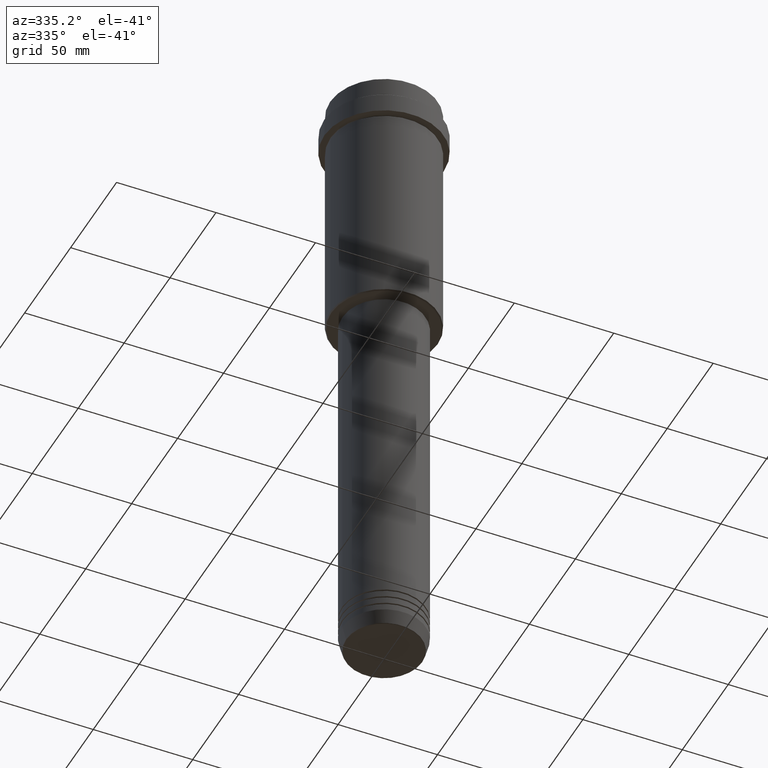
[diagram: clean part render]
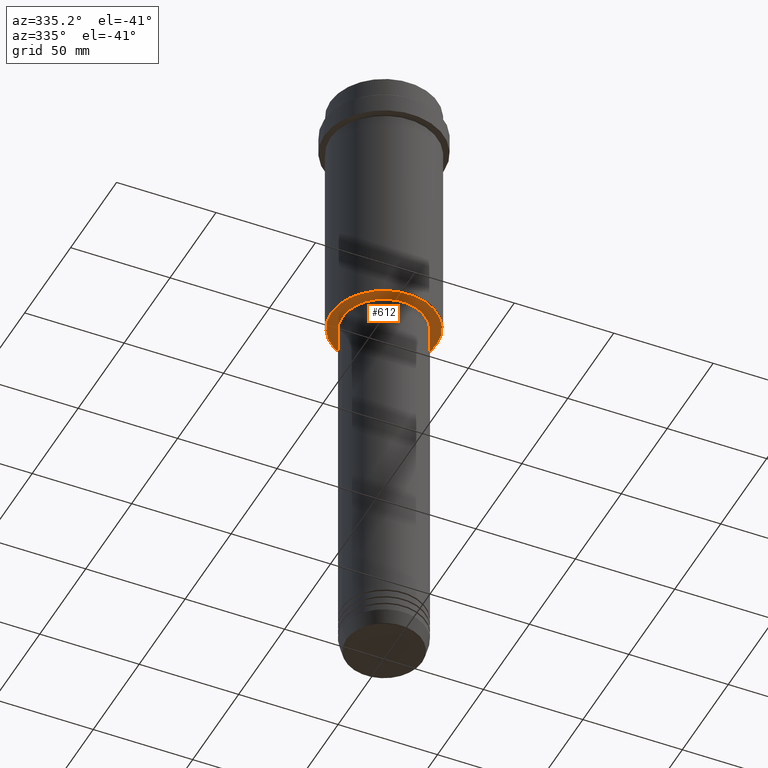
[diagram: same view with one face highlighted and labeled with its STEP entity id]
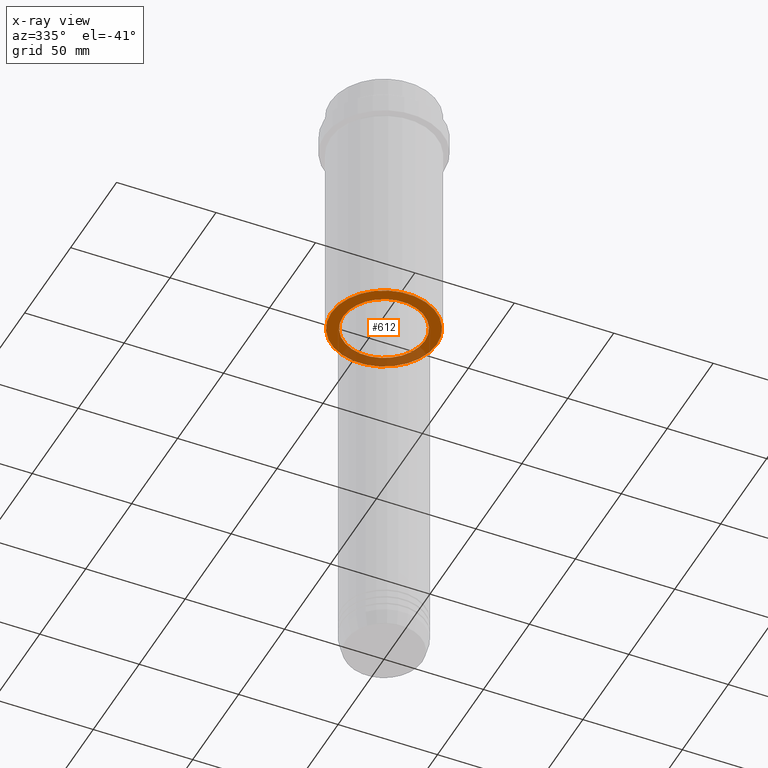
[diagram: x-ray of the same camera — body ghosted, the highlighted face saturated]
A machine part, auxiliary view. The second image highlights one B-rep face of the part: STEP entity #612.
The next image is the same camera in x-ray: the body ghosted, the highlighted face saturated — about 28% of this face is hidden behind the body in this view.
In plain terms, the highlighted planar face has unit normal (0, 0, -1).
Its self-contained STEP definition (entity closure, byte-faithful):
#18 = EDGE_CURVE ( 'NONE', #393, #205, #122, .T. ) ;
#27 = ORIENTED_EDGE ( 'NONE', *, *, #902, .T. ) ;
#41 = EDGE_LOOP ( 'NONE', ( #1369, #626 ) ) ;
#122 = CIRCLE ( 'NONE', #211, 20.50000000000000000 ) ;
#135 = DIRECTION ( 'NONE',  ( 1.000000000000000000, 0.000000000000000000, 0.000000000000000000 ) ) ;
#137 = PLANE ( 'NONE',  #919 ) ;
#205 = VERTEX_POINT ( 'NONE', #1344 ) ;
#211 = AXIS2_PLACEMENT_3D ( 'NONE', #827, #752, #135 ) ;
#240 = VERTEX_POINT ( 'NONE', #367 ) ;
#281 = CIRCLE ( 'NONE', #1081, 26.49999999999993960 ) ;
#283 = DIRECTION ( 'NONE',  ( -1.000000000000000000, 0.000000000000000000, 0.000000000000000000 ) ) ;
#291 = EDGE_CURVE ( 'NONE', #205, #393, #1039, .T. ) ;
#296 = CARTESIAN_POINT ( 'NONE',  ( 0.000000000000000000, 0.000000000000000000, -128.0000000000000000 ) ) ;
#367 = CARTESIAN_POINT ( 'NONE',  ( 26.49999999999993960, 0.000000000000000000, -128.0000000000000000 ) ) ;
#371 = EDGE_CURVE ( 'NONE', #240, #613, #1385, .T. ) ;
#393 = VERTEX_POINT ( 'NONE', #723 ) ;
#503 = DIRECTION ( 'NONE',  ( 0.000000000000000000, 0.000000000000000000, -1.000000000000000000 ) ) ;
#538 = CARTESIAN_POINT ( 'NONE',  ( 0.000000000000000000, 27.00000000000000000, -128.0000000000000000 ) ) ;
#544 = FACE_BOUND ( 'NONE', #41, .T. ) ;
#612 = ADVANCED_FACE ( 'NONE', ( #769, #544 ), #137, .T. ) ;
#613 = VERTEX_POINT ( 'NONE', #786 ) ;
#616 = DIRECTION ( 'NONE',  ( -1.000000000000000000, 0.000000000000000000, 0.000000000000000000 ) ) ;
#626 = ORIENTED_EDGE ( 'NONE', *, *, #291, .T. ) ;
#663 = CARTESIAN_POINT ( 'NONE',  ( 0.000000000000000000, 0.000000000000000000, -127.9999999999999716 ) ) ;
#723 = CARTESIAN_POINT ( 'NONE',  ( 20.50000000000000000, 0.000000000000000000, -127.9999999999999716 ) ) ;
#752 = DIRECTION ( 'NONE',  ( -0.000000000000000000, -0.000000000000000000, 1.000000000000000000 ) ) ;
#767 = AXIS2_PLACEMENT_3D ( 'NONE', #1261, #503, #283 ) ;
#769 = FACE_OUTER_BOUND ( 'NONE', #1247, .T. ) ;
#782 = ORIENTED_EDGE ( 'NONE', *, *, #371, .T. ) ;
#786 = CARTESIAN_POINT ( 'NONE',  ( -26.49999999999993960, 3.275930187719166002E-15, -128.0000000000000000 ) ) ;
#796 = DIRECTION ( 'NONE',  ( -0.000000000000000000, -0.000000000000000000, 1.000000000000000000 ) ) ;
#827 = CARTESIAN_POINT ( 'NONE',  ( 0.000000000000000000, 0.000000000000000000, -127.9999999999999716 ) ) ;
#849 = DIRECTION ( 'NONE',  ( 0.000000000000000000, 0.000000000000000000, -1.000000000000000000 ) ) ;
#902 = EDGE_CURVE ( 'NONE', #613, #240, #281, .T. ) ;
#919 = AXIS2_PLACEMENT_3D ( 'NONE', #538, #1203, #1325 ) ;
#1039 = CIRCLE ( 'NONE', #1332, 20.50000000000000000 ) ;
#1081 = AXIS2_PLACEMENT_3D ( 'NONE', #296, #849, #616 ) ;
#1203 = DIRECTION ( 'NONE',  ( 0.000000000000000000, 0.000000000000000000, -1.000000000000000000 ) ) ;
#1247 = EDGE_LOOP ( 'NONE', ( #782, #27 ) ) ;
#1261 = CARTESIAN_POINT ( 'NONE',  ( 0.000000000000000000, 0.000000000000000000, -128.0000000000000000 ) ) ;
#1325 = DIRECTION ( 'NONE',  ( -1.000000000000000000, 0.000000000000000000, -0.000000000000000000 ) ) ;
#1327 = DIRECTION ( 'NONE',  ( 1.000000000000000000, 0.000000000000000000, 0.000000000000000000 ) ) ;
#1332 = AXIS2_PLACEMENT_3D ( 'NONE', #663, #796, #1327 ) ;
#1344 = CARTESIAN_POINT ( 'NONE',  ( -20.50000000000000000, 2.510525938252074481E-15, -127.9999999999999716 ) ) ;
#1369 = ORIENTED_EDGE ( 'NONE', *, *, #18, .T. ) ;
#1385 = CIRCLE ( 'NONE', #767, 26.49999999999993960 ) ;